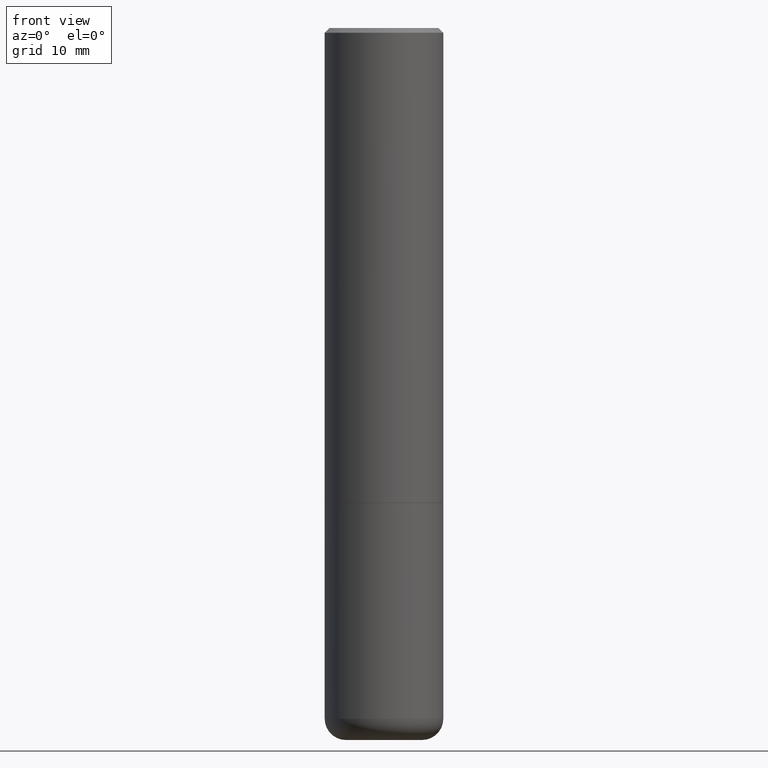
[diagram: clean part render]
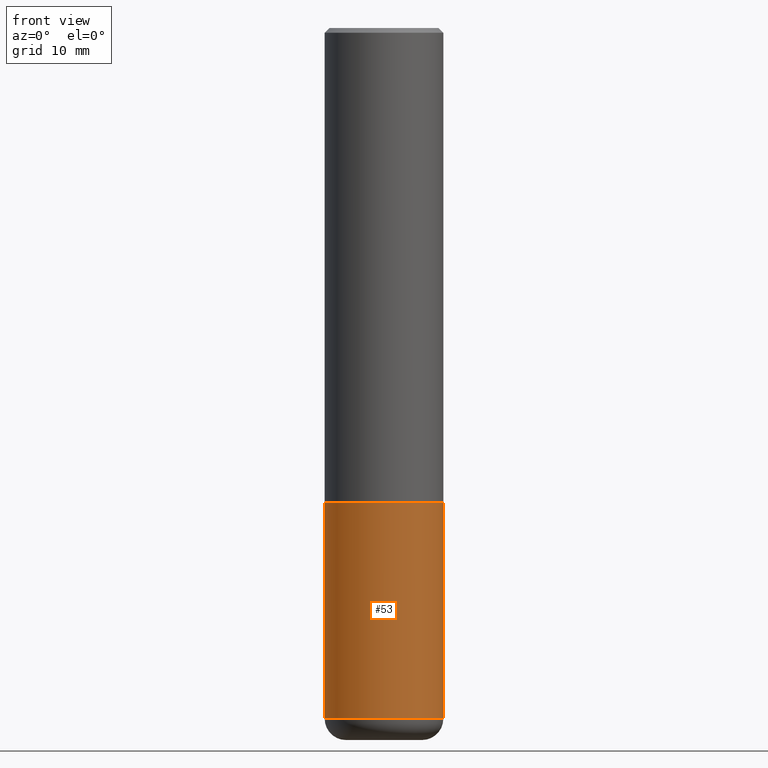
[diagram: same view with one face highlighted and labeled with its STEP entity id]
A machine part, front view. The second image highlights one B-rep face of the part: STEP entity #53.
In plain terms, the highlighted cylindrical surface (partial cylindrical patch) has radius 6.35 mm, axis along (-0, 0, 1).
Its self-contained STEP definition (entity closure, byte-faithful):
#18 = CARTESIAN_POINT ( 'NONE',  ( -0.2500000000000000000, 1.776356839400250465E-15, -1.229733772563726445E-29 ) ) ;
#19 = ORIENTED_EDGE ( 'NONE', *, *, #173, .T. ) ;
#34 = AXIS2_PLACEMENT_3D ( 'NONE', #269, #333, #147 ) ;
#44 = CARTESIAN_POINT ( 'NONE',  ( 0.2499999999999998335, -1.190595136545512292E-14, -2.910000000000000586 ) ) ;
#46 = AXIS2_PLACEMENT_3D ( 'NONE', #379, #242, #273 ) ;
#53 = ADVANCED_FACE ( 'NONE', ( #351 ), #282, .T. ) ;
#60 = DIRECTION ( 'NONE',  ( -2.445468806185136597E-29, 3.491481338843145583E-15, 1.000000000000000000 ) ) ;
#72 = CIRCLE ( 'NONE', #46, 0.2500000000000000000 ) ;
#86 = EDGE_CURVE ( 'NONE', #267, #368, #72, .T. ) ;
#90 = CARTESIAN_POINT ( 'NONE',  ( 0.000000000000000000, 0.000000000000000000, 0.000000000000000000 ) ) ;
#100 = EDGE_LOOP ( 'NONE', ( #396, #241, #19, #393 ) ) ;
#106 = VECTOR ( 'NONE', #329, 39.37007874015748143 ) ;
#108 = DIRECTION ( 'NONE',  ( -2.445468806185136877E-29, 3.491481338843145188E-15, 1.000000000000000000 ) ) ;
#117 = VERTEX_POINT ( 'NONE', #130 ) ;
#125 = CARTESIAN_POINT ( 'NONE',  ( 0.2500000000000000000, -1.745740669421566678E-15, 1.219044193948983948E-29 ) ) ;
#130 = CARTESIAN_POINT ( 'NONE',  ( -0.2500000000000000000, -6.795229847459672846E-15, -2.000000000000000444 ) ) ;
#147 = DIRECTION ( 'NONE',  ( 1.000000000000000000, -6.982962677686266711E-15, 0.000000000000000000 ) ) ;
#173 = EDGE_CURVE ( 'NONE', #368, #237, #410, .T. ) ;
#237 = VERTEX_POINT ( 'NONE', #357 ) ;
#241 = ORIENTED_EDGE ( 'NONE', *, *, #86, .T. ) ;
#242 = DIRECTION ( 'NONE',  ( -2.445468806185136597E-29, 3.491481338843145583E-15, 1.000000000000000000 ) ) ;
#267 = VERTEX_POINT ( 'NONE', #386 ) ;
#269 = CARTESIAN_POINT ( 'NONE',  ( 4.890937612370273754E-29, -6.982962677686291954E-15, -2.000000000000000444 ) ) ;
#273 = DIRECTION ( 'NONE',  ( 1.000000000000000000, -6.982962677686270655E-15, 0.000000000000000000 ) ) ;
#282 = CYLINDRICAL_SURFACE ( 'NONE', #310, 0.2500000000000000000 ) ;
#310 = AXIS2_PLACEMENT_3D ( 'NONE', #90, #60, #415 ) ;
#329 = DIRECTION ( 'NONE',  ( -2.445468806185136877E-29, 3.491481338843145188E-15, 1.000000000000000000 ) ) ;
#333 = DIRECTION ( 'NONE',  ( -2.445468806185136597E-29, 3.491481338843145583E-15, 1.000000000000000000 ) ) ;
#351 = FACE_OUTER_BOUND ( 'NONE', #100, .T. ) ;
#357 = CARTESIAN_POINT ( 'NONE',  ( 0.2500000000000000000, -8.728703347107858632E-15, -2.000000000000000444 ) ) ;
#362 = VECTOR ( 'NONE', #108, 39.37007874015748143 ) ;
#368 = VERTEX_POINT ( 'NONE', #44 ) ;
#369 = LINE ( 'NONE', #18, #106 ) ;
#379 = CARTESIAN_POINT ( 'NONE',  ( 7.116314225998749245E-29, -1.016021069603355467E-14, -2.910000000000000586 ) ) ;
#384 = EDGE_CURVE ( 'NONE', #267, #117, #369, .T. ) ;
#385 = CIRCLE ( 'NONE', #34, 0.2500000000000000000 ) ;
#386 = CARTESIAN_POINT ( 'NONE',  ( -0.2499999999999998335, -8.383853856633305780E-15, -2.910000000000000586 ) ) ;
#388 = EDGE_CURVE ( 'NONE', #117, #237, #385, .T. ) ;
#393 = ORIENTED_EDGE ( 'NONE', *, *, #388, .F. ) ;
#396 = ORIENTED_EDGE ( 'NONE', *, *, #384, .F. ) ;
#410 = LINE ( 'NONE', #125, #362 ) ;
#415 = DIRECTION ( 'NONE',  ( 1.000000000000000000, -6.982962677686266711E-15, 4.876176775795935793E-29 ) ) ;